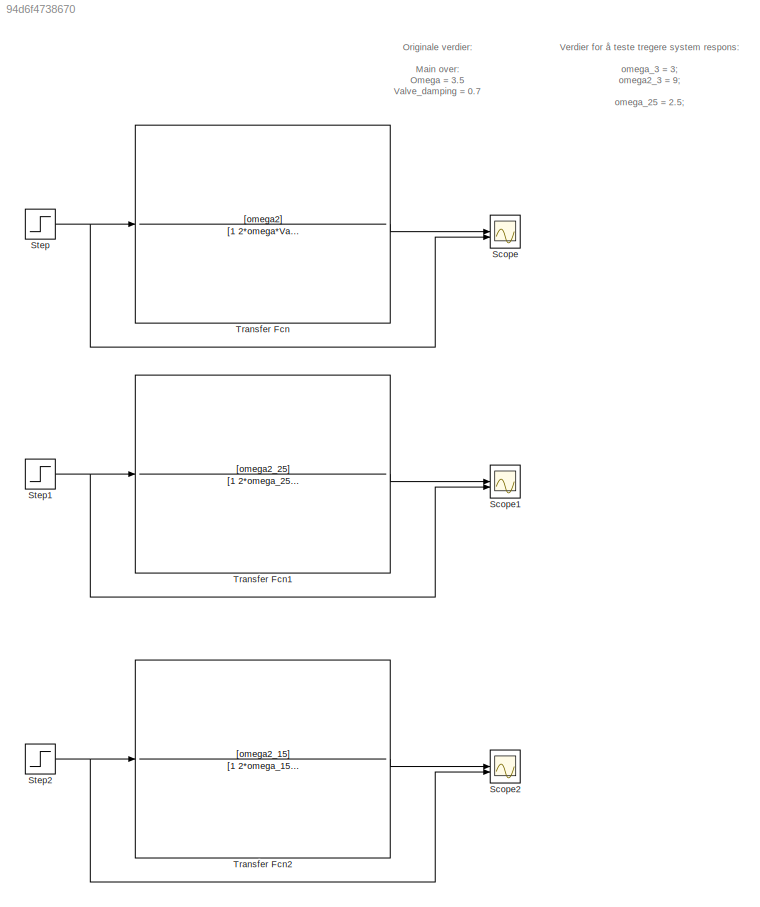
MODEL slx_94d6f4738670
KIND model
CONFIG AbsTol = auto
CONFIG EnableMultiTasking = off
CONFIG FixedStep = 0.01
CONFIG MaxStep = auto
CONFIG MinStep = auto
CONFIG RelTol = 1e-3
CONFIG SampleTimeConstraint = Unconstrained
CONFIG SolverName = FixedStepAuto
CONFIG StartTime = 0.0
CONFIG StopTime = 6
WORKSPACE source: MATLAB code (in-file)
WORKSPACE omega = 3.5
WORKSPACE omega2 = omega^2  (= 12.25)
WORKSPACE Valve_Dampning = 0.7
WORKSPACE omega_3 = 3
WORKSPACE omega2_3 = omega_3^2  (= 9)
WORKSPACE omega_25 = 2.5
WORKSPACE omega2_25 = omega_25^2  (= 6.25)
WORKSPACE omega_2 = 2
WORKSPACE omega2_2 = omega_2^2  (= 4)
WORKSPACE omega_15 = 1.5
WORKSPACE omega2_15 = omega_15^2  (= 2.25)
BLOCK [Scope] Scope
  Floating = off
  NumInputPorts = 2
  ScopeSpecificationString = Simulink.scopes.TimeScopeBlockCfg('CurrentConfiguration', extmgr.ConfigurationSet(extmgr.Configuration('Core','General UI',true),extmgr.Configuration('Core','Source UI',true),extmgr.Configuration('Sources','WiredSimulink',true),extmgr.Configuration('Visuals','Time Domain',true,'SerializedDisplays',{struct('MinYLimReal','-0.10344','MaxYLimReal','0.93099','YLabelReal','','MinYLimMag','0.00000','MaxY...<+1793ch>
BLOCK [Scope] Scope1
  Floating = off
  NumInputPorts = 2
  ScopeSpecificationString = Simulink.scopes.TimeScopeBlockCfg('CurrentConfiguration', extmgr.ConfigurationSet(extmgr.Configuration('Core','General UI',true),extmgr.Configuration('Core','Source UI',true),extmgr.Configuration('Sources','WiredSimulink',true,'DataLoggingVariableName','ScopeData1'),extmgr.Configuration('Visuals','Time Domain',true,'SerializedDisplays',{struct('MinYLimReal','-0.1034','MaxYLimReal','0.93063','YLabe...<+1831ch>
BLOCK [Scope] Scope2
  Floating = off
  NumInputPorts = 2
  ScopeSpecificationString = Simulink.scopes.TimeScopeBlockCfg('CurrentConfiguration', extmgr.ConfigurationSet(extmgr.Configuration('Core','General UI',true),extmgr.Configuration('Core','Source UI',true),extmgr.Configuration('Sources','WiredSimulink',true,'DataLoggingVariableName','ScopeData2'),extmgr.Configuration('Visuals','Time Domain',true,'SerializedDisplays',{struct('MinYLimReal','-0.10349','MaxYLimReal','0.93144','YLab...<+1837ch>
BLOCK [Step] Step
  After = 0.8
  Before = 0.2
  SampleTime = 0
  Time = 2
BLOCK [Step] Step1
  After = 0.8
  Before = 0.2
  SampleTime = 0
  Time = 2
BLOCK [Step] Step2
  After = 0.8
  Before = 0.2
  SampleTime = 0
  Time = 2
BLOCK [TransferFcn] Transfer Fcn
  Denominator = [1 2*omega*Valve_Dampning omega2]
  Numerator = [omega2]
BLOCK [TransferFcn] Transfer Fcn1
  Denominator = [1 2*omega_25*Valve_Dampning omega2_25]
  Numerator = [omega2_25]
BLOCK [TransferFcn] Transfer Fcn2
  Denominator = [1 2*omega_15*Valve_Dampning omega2_15]
  Numerator = [omega2_15]
ANNOTATION (root): Originale verdier: Main over: Omega = 3.5 Valve_damping = 0.7 Jib over: Omega = 3.5 Valve_damping = 0.7
ANNOTATION (root): Verdier for å teste tregere system respons: omega_3 = 3; omega2_3 = 9; omega_25 = 2.5; omega2_25 = 6.25; omega_2 = 2; omega2_2 = 4; omega_15 = 1.5; omega2_15 = 2.25;
NET Step1:1 -> Scope1:2, Transfer Fcn1:1
NET Step2:1 -> Scope2:2, Transfer Fcn2:1
NET Step:1 -> Scope:2, Transfer Fcn:1
LINE Transfer Fcn1:1 -> Scope1:1
LINE Transfer Fcn2:1 -> Scope2:1
LINE Transfer Fcn:1 -> Scope:1
note: NET lines group one-source signal fan-out (src -> all destinations, sorted); 1:1 wires keep LINE
